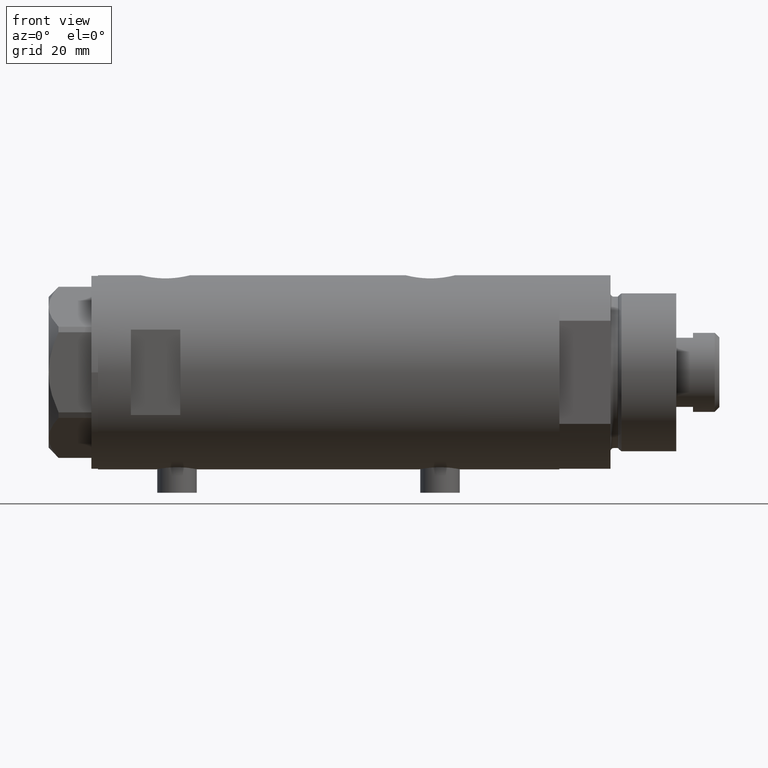
[diagram: clean part render]
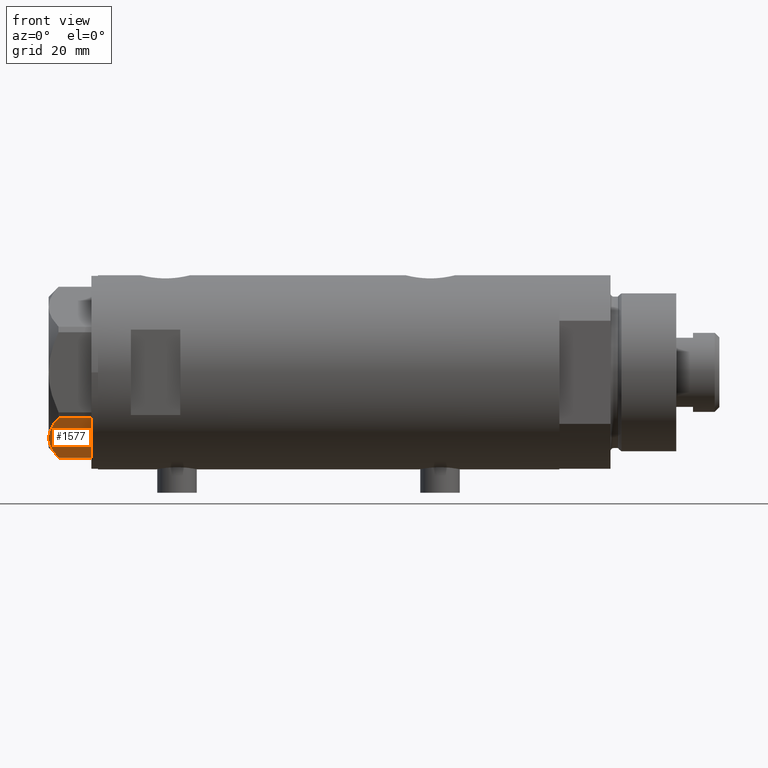
[diagram: same view with one face highlighted and labeled with its STEP entity id]
A machine part, front view. The second image highlights one B-rep face of the part: STEP entity #1577.
In plain terms, the highlighted planar face has unit normal (0, 0.5, 0.866).
Its self-contained STEP definition (entity closure, byte-faithful):
#46 = ORIENTED_EDGE ( 'NONE', *, *, #3958, .F. ) ;
#234 = CARTESIAN_POINT ( 'NONE',  ( -11.50000000000004441, 19.91858428704211548, 13.00000000000000000 ) ) ;
#402 = PLANE ( 'NONE',  #4298 ) ;
#591 = VECTOR ( 'NONE', #795, 1000.000000000000000 ) ;
#633 = DIRECTION ( 'NONE',  ( 0.000000000000000000, 0.000000000000000000, 1.000000000000000000 ) ) ;
#669 = CARTESIAN_POINT ( 'NONE',  ( -2.626494320835643048, 25.04170517956326236, 10.87778242614345814 ) ) ;
#760 = ORIENTED_EDGE ( 'NONE', *, *, #1069, .F. ) ;
#795 = DIRECTION ( 'NONE',  ( 0.000000000000000000, 0.000000000000000000, -1.000000000000000000 ) ) ;
#893 = CARTESIAN_POINT ( 'NONE',  ( -0.9699484522385893870, 25.99811238272273073, 0.000000000000000000 ) ) ;
#976 = VERTEX_POINT ( 'NONE', #4547 ) ;
#1051 = VECTOR ( 'NONE', #633, 1000.000000000000000 ) ;
#1069 = EDGE_CURVE ( 'NONE', #976, #3863, #4511, .T. ) ;
#1268 = CARTESIAN_POINT ( 'NONE',  ( -19.07486218896993790, 15.54523556316591915, 11.39727285399141898 ) ) ;
#1316 = EDGE_CURVE ( 'NONE', #1874, #1407, #4499, .T. ) ;
#1323 = CARTESIAN_POINT ( 'NONE',  ( -11.04134848610939557, 20.18338686205100885, 13.00000000000010125 ) ) ;
#1326 = EDGE_LOOP ( 'NONE', ( #3966, #2267, #760, #46, #1857 ) ) ;
#1369 = EDGE_CURVE ( 'NONE', #1407, #3699, #4176, .T. ) ;
#1407 = VERTEX_POINT ( 'NONE', #893 ) ;
#1423 = DIRECTION ( 'NONE',  ( 0.8660254037844381525, 0.5000000000000008882, 0.000000000000000000 ) ) ;
#1457 = DIRECTION ( 'NONE',  ( 0.5000000000000008882, -0.8660254037844381525, 0.000000000000000000 ) ) ;
#1577 = ADVANCED_FACE ( 'NONE', ( #3277 ), #402, .F. ) ;
#1666 = CARTESIAN_POINT ( 'NONE',  ( -21.20080365460317751, 14.31782268570117367, 10.43131750950939818 ) ) ;
#1699 = CARTESIAN_POINT ( 'NONE',  ( -4.320186229909891651, 24.06385169993495055, 11.62937486882611005 ) ) ;
#1715 = CARTESIAN_POINT ( 'NONE',  ( -15.11535457301031649, 17.83125835109857249, 12.70765172847700519 ) ) ;
#1838 = CARTESIAN_POINT ( 'NONE',  ( -22.03005154776141339, 13.83905619136132792, 0.000000000000000000 ) ) ;
#1857 = ORIENTED_EDGE ( 'NONE', *, *, #1316, .T. ) ;
#1874 = VERTEX_POINT ( 'NONE', #2285 ) ;
#2143 = VECTOR ( 'NONE', #4578, 1000.000000000000227 ) ;
#2192 = CARTESIAN_POINT ( 'NONE',  ( 0.000000000000000000, 26.55811238272274366, 13.00000000000000000 ) ) ;
#2267 = ORIENTED_EDGE ( 'NONE', *, *, #3275, .T. ) ;
#2285 = CARTESIAN_POINT ( 'NONE',  ( -0.9699484522384476115, 25.99811238272281599, 9.983800287807556018 ) ) ;
#2377 = CARTESIAN_POINT ( 'NONE',  ( -13.32175508098984018, 18.86679350063497296, 13.00000000000009237 ) ) ;
#2452 = CARTESIAN_POINT ( 'NONE',  ( -0.9699484522384476115, 25.99811238272281599, 9.983800287807556018 ) ) ;
#2481 = CARTESIAN_POINT ( 'NONE',  ( -11.50000000000004441, 19.91858428704211548, 13.00000000000000000 ) ) ;
#2706 = CARTESIAN_POINT ( 'NONE',  ( -0.9699484522385897201, 25.99811238272273073, 13.00000000000000000 ) ) ;
#2738 = CARTESIAN_POINT ( 'NONE',  ( -20.35958612119325650, 14.80349985506242838, 10.84420102443839085 ) ) ;
#2763 = CARTESIAN_POINT ( 'NONE',  ( -18.64279229058393739, 15.79469123530780372, 11.57055225522972286 ) ) ;
#2885 = CARTESIAN_POINT ( 'NONE',  ( -6.946777556903628970, 22.54738849024396075, 12.42689993760377831 ) ) ;
#3182 = CARTESIAN_POINT ( 'NONE',  ( -9.656518383329851574, 20.98291889467267879, 12.90784227772844162 ) ) ;
#3199 = CARTESIAN_POINT ( 'NONE',  ( -22.03005154776142760, 13.83905619136132259, 9.983800287807632401 ) ) ;
#3275 = EDGE_CURVE ( 'NONE', #3699, #3863, #4009, .T. ) ;
#3277 = FACE_OUTER_BOUND ( 'NONE', #1326, .T. ) ;
#3368 = B_SPLINE_CURVE_WITH_KNOTS ( 'NONE', 3,
 ( #2452, #669, #1699, #2885, #4305, #4265, #3182, #4640, #1323, #2481 ),
 .UNSPECIFIED., .F., .F.,
 ( 4, 2, 2, 2, 4 ),
 ( 0.001228959670438532553, 0.007497079744270828371, 0.01063113978118697921, 0.01219816979964505159, 0.01376519981810312397 ),
 .UNSPECIFIED. ) ;
#3669 = CARTESIAN_POINT ( 'NONE',  ( -22.03005154776142049, 13.83905619136132614, 13.00000000000000000 ) ) ;
#3699 = VERTEX_POINT ( 'NONE', #1838 ) ;
#3764 = CARTESIAN_POINT ( 'NONE',  ( 0.000000000000000000, 26.55811238272274366, 0.000000000000000000 ) ) ;
#3863 = VERTEX_POINT ( 'NONE', #4346 ) ;
#3958 = EDGE_CURVE ( 'NONE', #1874, #976, #3368, .T. ) ;
#3966 = ORIENTED_EDGE ( 'NONE', *, *, #1369, .T. ) ;
#4009 = LINE ( 'NONE', #3669, #1051 ) ;
#4176 = LINE ( 'NONE', #3764, #2143 ) ;
#4265 = CARTESIAN_POINT ( 'NONE',  ( -9.197898616902921987, 21.24770314027493612, 12.85271263895580596 ) ) ;
#4298 = AXIS2_PLACEMENT_3D ( 'NONE', #2192, #1457, #1423 ) ;
#4305 = CARTESIAN_POINT ( 'NONE',  ( -7.836767740116584058, 22.03355241838984924, 12.63731396715694899 ) ) ;
#4346 = CARTESIAN_POINT ( 'NONE',  ( -22.03005154776142760, 13.83905619136132259, 9.983800287807632401 ) ) ;
#4499 = LINE ( 'NONE', #2706, #591 ) ;
#4511 = B_SPLINE_CURVE_WITH_KNOTS ( 'NONE', 3,
 ( #234, #2377, #1715, #4638, #4589, #2763, #1268, #2738, #1666, #3199 ),
 .UNSPECIFIED., .F., .F.,
 ( 4, 2, 2, 2, 4 ),
 ( 0.01376519981810312397, 0.01998941321701587850, 0.02154546656674406757, 0.02310151991647225664, 0.02621362661592864171 ),
 .UNSPECIFIED. ) ;
#4547 = CARTESIAN_POINT ( 'NONE',  ( -11.50000000000004441, 19.91858428704211548, 13.00000000000000000 ) ) ;
#4578 = DIRECTION ( 'NONE',  ( -0.8660254037844380415, -0.5000000000000008882, 0.000000000000000000 ) ) ;
#4589 = CARTESIAN_POINT ( 'NONE',  ( -17.77001848220189828, 16.29858742851882525, 11.89212886775844424 ) ) ;
#4638 = CARTESIAN_POINT ( 'NONE',  ( -17.32831362639716843, 16.55360584592005679, 12.04068176582934235 ) ) ;
#4640 = CARTESIAN_POINT ( 'NONE',  ( -10.58093321976963175, 20.44920774001128194, 12.98168640760950510 ) ) ;